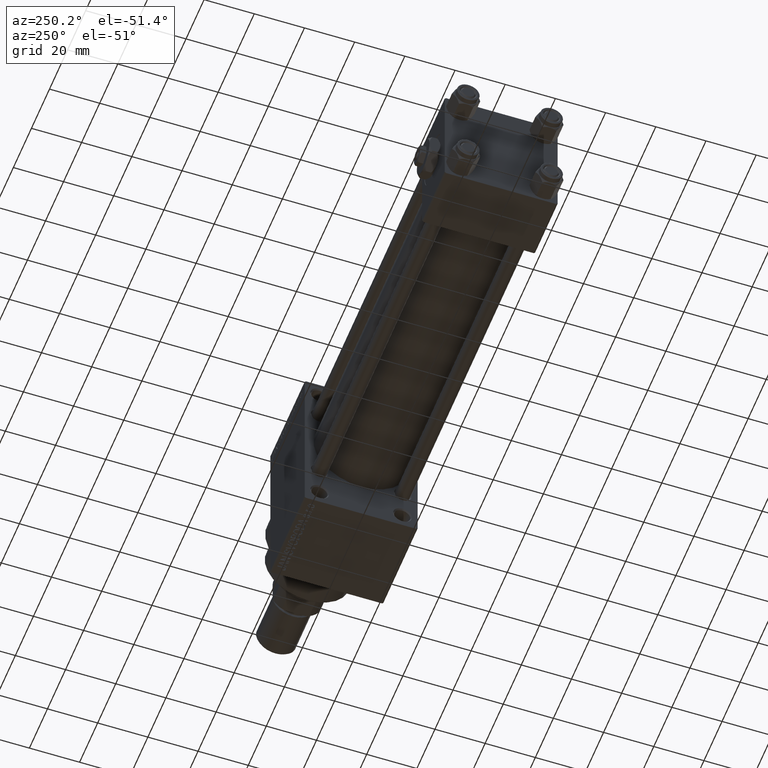
[diagram: clean part render]
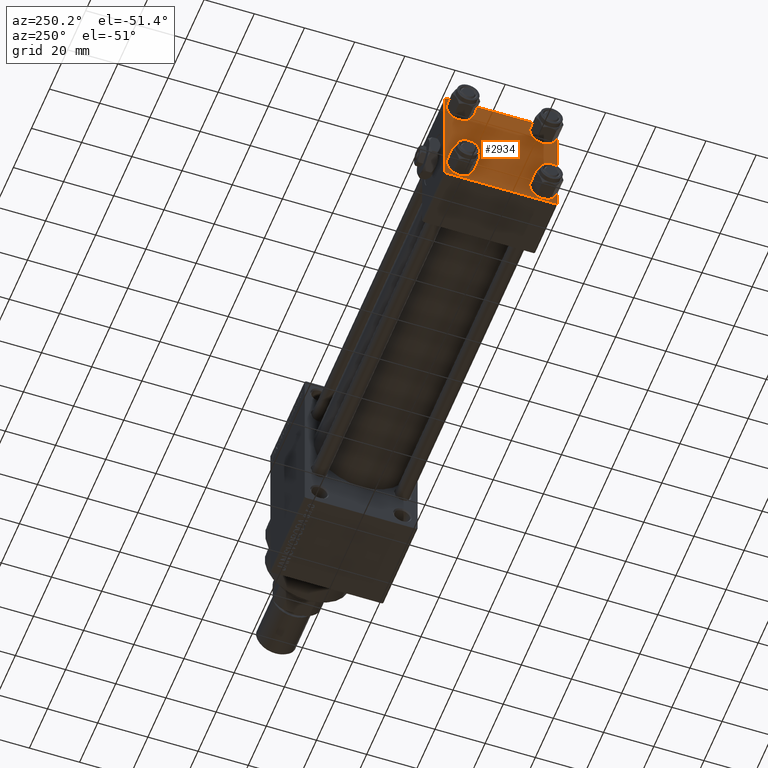
[diagram: same view with one face highlighted and labeled with its STEP entity id]
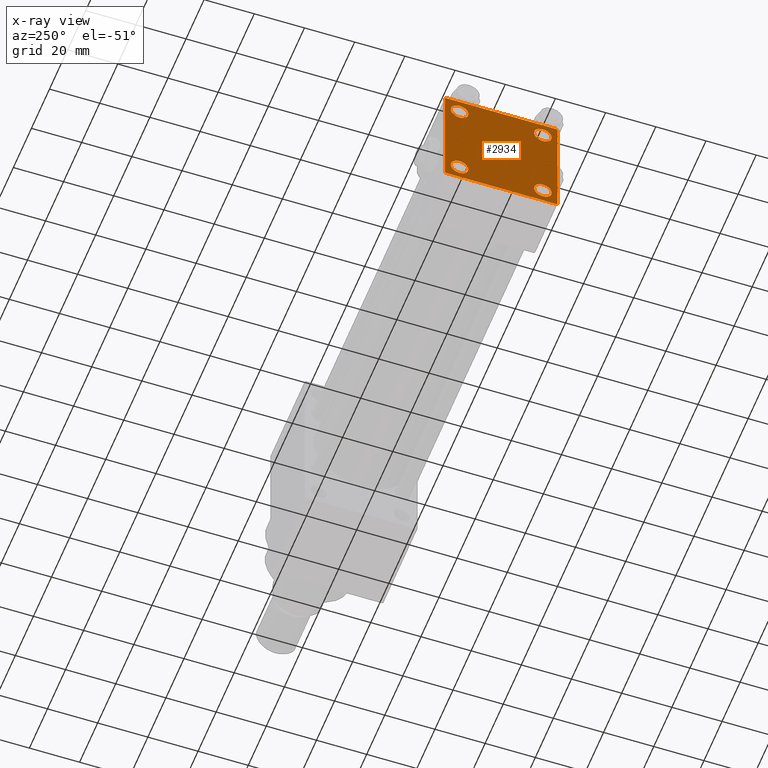
[diagram: x-ray of the same camera — body ghosted, the highlighted face saturated]
A machine part, auxiliary view. The second image highlights one B-rep face of the part: STEP entity #2934.
The next image is the same camera in x-ray: the body ghosted, the highlighted face saturated — about 0% of this face is hidden behind the body in this view.
In plain terms, the highlighted planar face has unit normal (-1, 0, 0).
Its self-contained STEP definition (entity closure, byte-faithful):
#492 = AXIS2_PLACEMENT_3D ( 'NONE', #23991, #39125, #43336 ) ;
#654 = DIRECTION ( 'NONE',  ( 1.000000000000000000, -0.000000000000000000, 0.000000000000000000 ) ) ;
#860 = VERTEX_POINT ( 'NONE', #27941 ) ;
#1145 = CARTESIAN_POINT ( 'NONE',  ( 0.000000000000000000, -22.50000000000000000, -21.99999999999997158 ) ) ;
#1266 = DIRECTION ( 'NONE',  ( 0.000000000000000000, 0.000000000000000000, 1.000000000000000000 ) ) ;
#1481 = AXIS2_PLACEMENT_3D ( 'NONE', #42908, #28270, #1266 ) ;
#1541 = CARTESIAN_POINT ( 'NONE',  ( 0.000000000000000000, 16.59999999999999787, 13.10000000000000675 ) ) ;
#2076 = DIRECTION ( 'NONE',  ( 0.000000000000000000, 0.7071067811865474617, -0.7071067811865474617 ) ) ;
#2136 = CARTESIAN_POINT ( 'NONE',  ( 0.000000000000000000, 22.50000000000000000, -22.49999999999999645 ) ) ;
#2934 = ADVANCED_FACE ( 'NONE', ( #5703, #17089, #47858, #20815, #9658 ), #39675, .T. ) ;
#3050 = DIRECTION ( 'NONE',  ( 0.000000000000000000, 0.000000000000000000, 1.000000000000000000 ) ) ;
#3265 = EDGE_CURVE ( 'NONE', #27217, #860, #48756, .T. ) ;
#3315 = DIRECTION ( 'NONE',  ( 0.000000000000000000, 0.000000000000000000, -1.000000000000000000 ) ) ;
#3353 = CIRCLE ( 'NONE', #17557, 3.499999999999996003 ) ;
#3758 = EDGE_CURVE ( 'NONE', #10003, #20625, #15058, .T. ) ;
#3955 = CARTESIAN_POINT ( 'NONE',  ( 0.000000000000000000, 16.59999999999999787, 16.60000000000000497 ) ) ;
#4087 = AXIS2_PLACEMENT_3D ( 'NONE', #45693, #42454, #30552 ) ;
#4619 = DIRECTION ( 'NONE',  ( 1.000000000000000000, -0.000000000000000000, 0.000000000000000000 ) ) ;
#4702 = CARTESIAN_POINT ( 'NONE',  ( 0.000000000000000000, 21.99999999999999289, 22.50000000000000355 ) ) ;
#4797 = DIRECTION ( 'NONE',  ( 0.000000000000000000, 0.000000000000000000, -1.000000000000000000 ) ) ;
#5081 = CARTESIAN_POINT ( 'NONE',  ( 0.000000000000000000, 22.50000000000000000, -21.99999999999996803 ) ) ;
#5703 = FACE_BOUND ( 'NONE', #31596, .T. ) ;
#6000 = AXIS2_PLACEMENT_3D ( 'NONE', #32221, #16847, #28261 ) ;
#6195 = VERTEX_POINT ( 'NONE', #30103 ) ;
#7022 = CARTESIAN_POINT ( 'NONE',  ( 0.000000000000000000, -22.50000000000000000, 22.50000000000000000 ) ) ;
#7382 = DIRECTION ( 'NONE',  ( -0.000000000000000000, -0.7071067811865426878, -0.7071067811865524577 ) ) ;
#7914 = EDGE_CURVE ( 'NONE', #23866, #28581, #48205, .T. ) ;
#8001 = AXIS2_PLACEMENT_3D ( 'NONE', #24448, #9817, #10065 ) ;
#8130 = ORIENTED_EDGE ( 'NONE', *, *, #49023, .T. ) ;
#8144 = EDGE_CURVE ( 'NONE', #28581, #23866, #47421, .T. ) ;
#8509 = CARTESIAN_POINT ( 'NONE',  ( 0.000000000000000000, 22.50000000000000000, 22.50000000000000355 ) ) ;
#8559 = DIRECTION ( 'NONE',  ( 0.000000000000000000, -1.000000000000000000, -7.709882115452476934E-17 ) ) ;
#9098 = CARTESIAN_POINT ( 'NONE',  ( 0.000000000000000000, -16.59999999999999076, -13.10000000000001030 ) ) ;
#9388 = AXIS2_PLACEMENT_3D ( 'NONE', #38583, #4619, #27409 ) ;
#9629 = CIRCLE ( 'NONE', #4087, 3.499999999999996003 ) ;
#9658 = FACE_OUTER_BOUND ( 'NONE', #41751, .T. ) ;
#9817 = DIRECTION ( 'NONE',  ( 1.000000000000000000, -0.000000000000000000, 0.000000000000000000 ) ) ;
#10003 = VERTEX_POINT ( 'NONE', #5081 ) ;
#10065 = DIRECTION ( 'NONE',  ( 0.000000000000000000, 0.000000000000000000, 1.000000000000000000 ) ) ;
#10662 = LINE ( 'NONE', #19502, #31548 ) ;
#11107 = EDGE_CURVE ( 'NONE', #860, #27217, #38773, .T. ) ;
#11216 = LINE ( 'NONE', #7022, #34516 ) ;
#11335 = CARTESIAN_POINT ( 'NONE',  ( 0.000000000000000000, 22.25000000000014566, -22.24999999999984013 ) ) ;
#11824 = VERTEX_POINT ( 'NONE', #22475 ) ;
#11862 = DIRECTION ( 'NONE',  ( 0.000000000000000000, 0.000000000000000000, 1.000000000000000000 ) ) ;
#11998 = VECTOR ( 'NONE', #8559, 1000.000000000000000 ) ;
#12137 = CARTESIAN_POINT ( 'NONE',  ( 0.000000000000000000, -16.59999999999999076, 13.10000000000001030 ) ) ;
#12222 = LINE ( 'NONE', #8509, #17151 ) ;
#12255 = ORIENTED_EDGE ( 'NONE', *, *, #25973, .T. ) ;
#13106 = CARTESIAN_POINT ( 'NONE',  ( 0.000000000000000000, 16.59999999999999787, -13.10000000000000675 ) ) ;
#14073 = ORIENTED_EDGE ( 'NONE', *, *, #41998, .T. ) ;
#14125 = CIRCLE ( 'NONE', #18054, 3.499999999999996003 ) ;
#14724 = ORIENTED_EDGE ( 'NONE', *, *, #3265, .T. ) ;
#14824 = VERTEX_POINT ( 'NONE', #33615 ) ;
#14834 = EDGE_CURVE ( 'NONE', #26229, #45921, #26916, .T. ) ;
#15058 = LINE ( 'NONE', #11335, #47168 ) ;
#16411 = EDGE_CURVE ( 'NONE', #32465, #48401, #3353, .T. ) ;
#16685 = LINE ( 'NONE', #35538, #46598 ) ;
#16847 = DIRECTION ( 'NONE',  ( -1.000000000000000000, 0.000000000000000000, -0.000000000000000000 ) ) ;
#17089 = FACE_BOUND ( 'NONE', #24637, .T. ) ;
#17151 = VECTOR ( 'NONE', #4797, 1000.000000000000000 ) ;
#17557 = AXIS2_PLACEMENT_3D ( 'NONE', #3955, #37659, #11862 ) ;
#18054 = AXIS2_PLACEMENT_3D ( 'NONE', #36767, #33762, #3050 ) ;
#18999 = VECTOR ( 'NONE', #35597, 1000.000000000000000 ) ;
#19502 = CARTESIAN_POINT ( 'NONE',  ( -0.000000000000000000, -22.24999999999984013, 22.25000000000015277 ) ) ;
#20459 = LINE ( 'NONE', #2136, #18999 ) ;
#20625 = VERTEX_POINT ( 'NONE', #26425 ) ;
#20815 = FACE_BOUND ( 'NONE', #48828, .T. ) ;
#20837 = VERTEX_POINT ( 'NONE', #1145 ) ;
#22475 = CARTESIAN_POINT ( 'NONE',  ( 0.000000000000000000, -21.99999999999997158, -22.50000000000000711 ) ) ;
#22958 = CARTESIAN_POINT ( 'NONE',  ( 0.000000000000000000, -16.59999999999999076, 16.60000000000000853 ) ) ;
#23866 = VERTEX_POINT ( 'NONE', #31794 ) ;
#23991 = CARTESIAN_POINT ( 'NONE',  ( 0.000000000000000000, -16.59999999999999076, 16.60000000000000853 ) ) ;
#24448 = CARTESIAN_POINT ( 'NONE',  ( 0.000000000000000000, 16.59999999999999787, -16.60000000000000497 ) ) ;
#24637 = EDGE_LOOP ( 'NONE', ( #31546, #31202 ) ) ;
#25109 = ORIENTED_EDGE ( 'NONE', *, *, #33985, .F. ) ;
#25973 = EDGE_CURVE ( 'NONE', #11824, #20837, #42427, .T. ) ;
#26180 = CIRCLE ( 'NONE', #8001, 3.499999999999996003 ) ;
#26229 = VERTEX_POINT ( 'NONE', #4702 ) ;
#26425 = CARTESIAN_POINT ( 'NONE',  ( 0.000000000000000000, 21.99999999999999289, -22.49999999999999645 ) ) ;
#26916 = LINE ( 'NONE', #41790, #11998 ) ;
#27217 = VERTEX_POINT ( 'NONE', #12137 ) ;
#27409 = DIRECTION ( 'NONE',  ( 0.000000000000000000, 0.000000000000000000, 1.000000000000000000 ) ) ;
#27941 = CARTESIAN_POINT ( 'NONE',  ( 0.000000000000000000, -16.59999999999999076, 20.10000000000000853 ) ) ;
#28261 = DIRECTION ( 'NONE',  ( -0.000000000000000000, 0.000000000000000000, 1.000000000000000000 ) ) ;
#28270 = DIRECTION ( 'NONE',  ( 1.000000000000000000, -0.000000000000000000, 0.000000000000000000 ) ) ;
#28581 = VERTEX_POINT ( 'NONE', #9098 ) ;
#28926 = VECTOR ( 'NONE', #30529, 1000.000000000000000 ) ;
#29567 = ORIENTED_EDGE ( 'NONE', *, *, #48234, .T. ) ;
#30103 = CARTESIAN_POINT ( 'NONE',  ( 0.000000000000000000, -22.50000000000000000, 22.00000000000000000 ) ) ;
#30460 = ORIENTED_EDGE ( 'NONE', *, *, #14834, .F. ) ;
#30529 = DIRECTION ( 'NONE',  ( 0.000000000000000000, -0.7071067811865426878, 0.7071067811865524577 ) ) ;
#30552 = DIRECTION ( 'NONE',  ( 0.000000000000000000, 0.000000000000000000, 1.000000000000000000 ) ) ;
#30567 = EDGE_CURVE ( 'NONE', #14824, #10003, #12222, .T. ) ;
#31202 = ORIENTED_EDGE ( 'NONE', *, *, #7914, .T. ) ;
#31546 = ORIENTED_EDGE ( 'NONE', *, *, #8144, .T. ) ;
#31548 = VECTOR ( 'NONE', #42086, 999.9999999999998863 ) ;
#31596 = EDGE_LOOP ( 'NONE', ( #47700, #14724 ) ) ;
#31794 = CARTESIAN_POINT ( 'NONE',  ( 0.000000000000000000, -16.59999999999999076, -20.10000000000000497 ) ) ;
#32221 = CARTESIAN_POINT ( 'NONE',  ( 0.000000000000000000, 0.000000000000000000, 0.000000000000000000 ) ) ;
#32465 = VERTEX_POINT ( 'NONE', #37613 ) ;
#33615 = CARTESIAN_POINT ( 'NONE',  ( 0.000000000000000000, 22.50000000000000000, 21.99999999999999645 ) ) ;
#33762 = DIRECTION ( 'NONE',  ( 1.000000000000000000, -0.000000000000000000, 0.000000000000000000 ) ) ;
#33985 = EDGE_CURVE ( 'NONE', #6195, #20837, #11216, .T. ) ;
#34516 = VECTOR ( 'NONE', #3315, 1000.000000000000000 ) ;
#34576 = EDGE_LOOP ( 'NONE', ( #8130, #29567 ) ) ;
#34799 = ORIENTED_EDGE ( 'NONE', *, *, #42216, .T. ) ;
#35538 = CARTESIAN_POINT ( 'NONE',  ( 0.000000000000000000, 22.24999999999999645, 22.24999999999999645 ) ) ;
#35597 = DIRECTION ( 'NONE',  ( 0.000000000000000000, -1.000000000000000000, -2.312964634635742957E-16 ) ) ;
#36767 = CARTESIAN_POINT ( 'NONE',  ( 0.000000000000000000, 16.59999999999999787, 16.60000000000000497 ) ) ;
#36936 = VERTEX_POINT ( 'NONE', #13106 ) ;
#37613 = CARTESIAN_POINT ( 'NONE',  ( 0.000000000000000000, 16.59999999999999787, 20.10000000000000142 ) ) ;
#37659 = DIRECTION ( 'NONE',  ( 1.000000000000000000, -0.000000000000000000, 0.000000000000000000 ) ) ;
#37992 = AXIS2_PLACEMENT_3D ( 'NONE', #22958, #654, #38577 ) ;
#38526 = ORIENTED_EDGE ( 'NONE', *, *, #30567, .T. ) ;
#38577 = DIRECTION ( 'NONE',  ( 0.000000000000000000, 0.000000000000000000, 1.000000000000000000 ) ) ;
#38583 = CARTESIAN_POINT ( 'NONE',  ( 0.000000000000000000, -16.59999999999999076, -16.60000000000000853 ) ) ;
#38711 = CARTESIAN_POINT ( 'NONE',  ( 0.000000000000000000, -22.25000000000014566, -22.24999999999984013 ) ) ;
#38773 = CIRCLE ( 'NONE', #37992, 3.499999999999996003 ) ;
#38855 = EDGE_CURVE ( 'NONE', #6195, #45921, #10662, .T. ) ;
#39125 = DIRECTION ( 'NONE',  ( 1.000000000000000000, -0.000000000000000000, 0.000000000000000000 ) ) ;
#39675 = PLANE ( 'NONE',  #6000 ) ;
#41459 = ORIENTED_EDGE ( 'NONE', *, *, #3758, .T. ) ;
#41751 = EDGE_LOOP ( 'NONE', ( #38526, #41459, #47741, #12255, #25109, #44322, #30460, #14073 ) ) ;
#41790 = CARTESIAN_POINT ( 'NONE',  ( 0.000000000000000000, 22.50000000000000000, 22.50000000000000355 ) ) ;
#41998 = EDGE_CURVE ( 'NONE', #26229, #14824, #16685, .T. ) ;
#42086 = DIRECTION ( 'NONE',  ( -0.000000000000000000, 0.7071067811865525687, 0.7071067811865425767 ) ) ;
#42216 = EDGE_CURVE ( 'NONE', #48401, #32465, #14125, .T. ) ;
#42427 = LINE ( 'NONE', #38711, #28926 ) ;
#42454 = DIRECTION ( 'NONE',  ( 1.000000000000000000, -0.000000000000000000, 0.000000000000000000 ) ) ;
#42908 = CARTESIAN_POINT ( 'NONE',  ( 0.000000000000000000, -16.59999999999999076, -16.60000000000000853 ) ) ;
#43336 = DIRECTION ( 'NONE',  ( 0.000000000000000000, 0.000000000000000000, 1.000000000000000000 ) ) ;
#43637 = VERTEX_POINT ( 'NONE', #48851 ) ;
#43826 = ORIENTED_EDGE ( 'NONE', *, *, #16411, .T. ) ;
#44087 = CARTESIAN_POINT ( 'NONE',  ( 0.000000000000000000, -21.99999999999997868, 22.50000000000000000 ) ) ;
#44322 = ORIENTED_EDGE ( 'NONE', *, *, #38855, .T. ) ;
#45693 = CARTESIAN_POINT ( 'NONE',  ( 0.000000000000000000, 16.59999999999999787, -16.60000000000000497 ) ) ;
#45921 = VERTEX_POINT ( 'NONE', #44087 ) ;
#46306 = EDGE_CURVE ( 'NONE', #20625, #11824, #20459, .T. ) ;
#46598 = VECTOR ( 'NONE', #2076, 1000.000000000000114 ) ;
#47168 = VECTOR ( 'NONE', #7382, 1000.000000000000000 ) ;
#47421 = CIRCLE ( 'NONE', #9388, 3.499999999999996003 ) ;
#47700 = ORIENTED_EDGE ( 'NONE', *, *, #11107, .T. ) ;
#47741 = ORIENTED_EDGE ( 'NONE', *, *, #46306, .T. ) ;
#47858 = FACE_BOUND ( 'NONE', #34576, .T. ) ;
#48205 = CIRCLE ( 'NONE', #1481, 3.499999999999996003 ) ;
#48234 = EDGE_CURVE ( 'NONE', #43637, #36936, #26180, .T. ) ;
#48401 = VERTEX_POINT ( 'NONE', #1541 ) ;
#48756 = CIRCLE ( 'NONE', #492, 3.499999999999996003 ) ;
#48828 = EDGE_LOOP ( 'NONE', ( #43826, #34799 ) ) ;
#48851 = CARTESIAN_POINT ( 'NONE',  ( 0.000000000000000000, 16.59999999999999787, -20.10000000000000142 ) ) ;
#49023 = EDGE_CURVE ( 'NONE', #36936, #43637, #9629, .T. ) ;